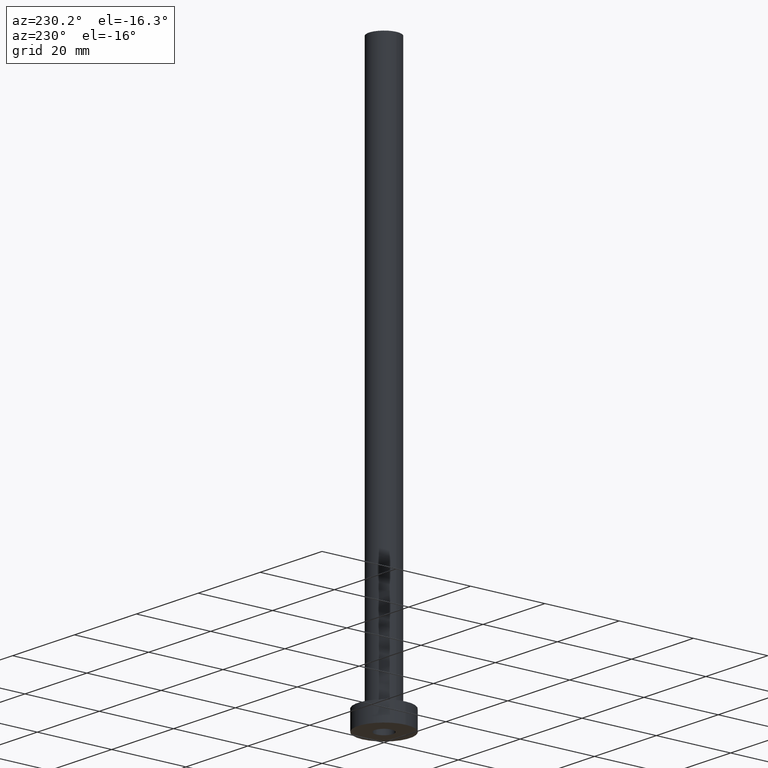
[diagram: clean part render]
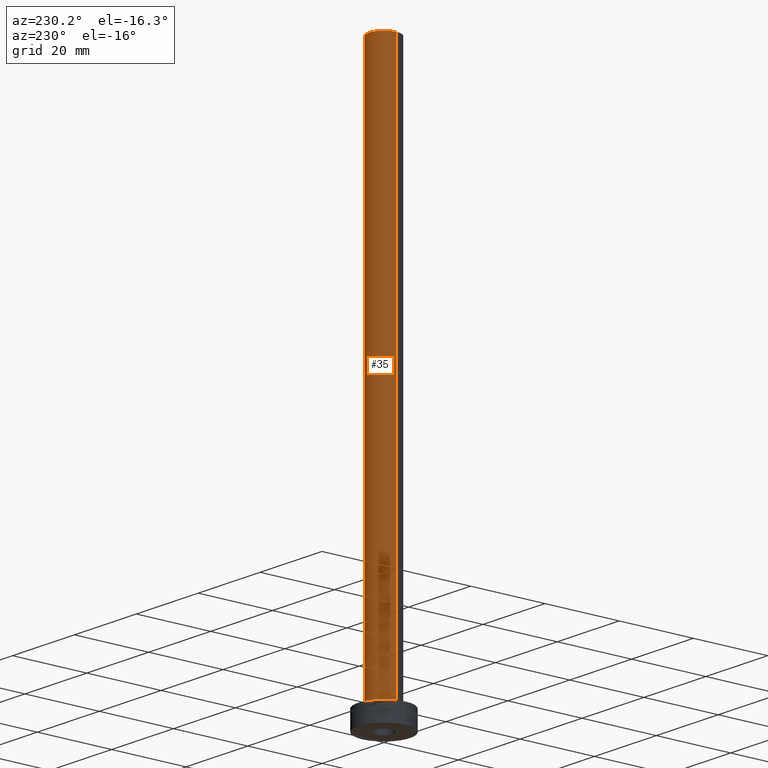
[diagram: same view with one face highlighted and labeled with its STEP entity id]
A machine part, auxiliary view. The second image highlights one B-rep face of the part: STEP entity #35.
In plain terms, the highlighted cylindrical surface (edge-blend (fillet) strip) has radius 4 mm, axis along (-0, -0, -1).
Its self-contained STEP definition (entity closure, byte-faithful):
#2 = CARTESIAN_POINT ( 'NONE',  ( 0.000000000000000000, 0.000000000000000000, 5.500000000000005329 ) ) ;
#18 = EDGE_LOOP ( 'NONE', ( #176, #264, #405, #184 ) ) ;
#35 = ADVANCED_FACE ( 'NONE', ( #344 ), #415, .T. ) ;
#44 = VERTEX_POINT ( 'NONE', #339 ) ;
#52 = AXIS2_PLACEMENT_3D ( 'NONE', #201, #160, #100 ) ;
#53 = DIRECTION ( 'NONE',  ( -0.000000000000000000, -0.000000000000000000, -1.000000000000000000 ) ) ;
#61 = VERTEX_POINT ( 'NONE', #144 ) ;
#91 = VERTEX_POINT ( 'NONE', #103 ) ;
#92 = VECTOR ( 'NONE', #393, 1000.000000000000000 ) ;
#98 = VECTOR ( 'NONE', #53, 1000.000000000000000 ) ;
#100 = DIRECTION ( 'NONE',  ( -1.000000000000000000, 0.000000000000000000, 0.000000000000000000 ) ) ;
#103 = CARTESIAN_POINT ( 'NONE',  ( -4.000000000000000000, 0.000000000000000000, 5.500000000000005329 ) ) ;
#108 = CARTESIAN_POINT ( 'NONE',  ( 4.000000000000000000, 4.898587196589412829E-16, 5.500000000000005329 ) ) ;
#119 = EDGE_CURVE ( 'NONE', #445, #91, #401, .T. ) ;
#136 = DIRECTION ( 'NONE',  ( 0.000000000000000000, 0.000000000000000000, 1.000000000000000000 ) ) ;
#144 = CARTESIAN_POINT ( 'NONE',  ( -4.000000000000000000, 0.000000000000000000, 150.0000000000000000 ) ) ;
#160 = DIRECTION ( 'NONE',  ( -0.000000000000000000, -0.000000000000000000, -1.000000000000000000 ) ) ;
#176 = ORIENTED_EDGE ( 'NONE', *, *, #350, .F. ) ;
#184 = ORIENTED_EDGE ( 'NONE', *, *, #202, .F. ) ;
#201 = CARTESIAN_POINT ( 'NONE',  ( 0.000000000000000000, 0.000000000000000000, 150.0000000000000000 ) ) ;
#202 = EDGE_CURVE ( 'NONE', #61, #91, #259, .T. ) ;
#227 = CARTESIAN_POINT ( 'NONE',  ( 4.000000000000000000, 4.898587196589412829E-16, 150.0000000000000000 ) ) ;
#240 = DIRECTION ( 'NONE',  ( 1.000000000000000000, 0.000000000000000000, 0.000000000000000000 ) ) ;
#259 = LINE ( 'NONE', #440, #92 ) ;
#264 = ORIENTED_EDGE ( 'NONE', *, *, #363, .T. ) ;
#272 = CARTESIAN_POINT ( 'NONE',  ( 0.000000000000000000, 0.000000000000000000, 150.0000000000000000 ) ) ;
#274 = LINE ( 'NONE', #227, #98 ) ;
#300 = DIRECTION ( 'NONE',  ( 1.000000000000000000, 0.000000000000000000, 0.000000000000000000 ) ) ;
#339 = CARTESIAN_POINT ( 'NONE',  ( 4.000000000000000000, 4.898587196589412829E-16, 150.0000000000000000 ) ) ;
#344 = FACE_OUTER_BOUND ( 'NONE', #18, .T. ) ;
#350 = EDGE_CURVE ( 'NONE', #44, #61, #357, .T. ) ;
#357 = CIRCLE ( 'NONE', #378, 4.000000000000000000 ) ;
#363 = EDGE_CURVE ( 'NONE', #44, #445, #274, .T. ) ;
#378 = AXIS2_PLACEMENT_3D ( 'NONE', #272, #136, #300 ) ;
#393 = DIRECTION ( 'NONE',  ( -0.000000000000000000, -0.000000000000000000, -1.000000000000000000 ) ) ;
#401 = CIRCLE ( 'NONE', #434, 4.000000000000000000 ) ;
#405 = ORIENTED_EDGE ( 'NONE', *, *, #119, .T. ) ;
#415 = CYLINDRICAL_SURFACE ( 'NONE', #52, 4.000000000000000000 ) ;
#433 = DIRECTION ( 'NONE',  ( 0.000000000000000000, 0.000000000000000000, 1.000000000000000000 ) ) ;
#434 = AXIS2_PLACEMENT_3D ( 'NONE', #2, #433, #240 ) ;
#440 = CARTESIAN_POINT ( 'NONE',  ( -4.000000000000000000, 0.000000000000000000, 150.0000000000000000 ) ) ;
#445 = VERTEX_POINT ( 'NONE', #108 ) ;